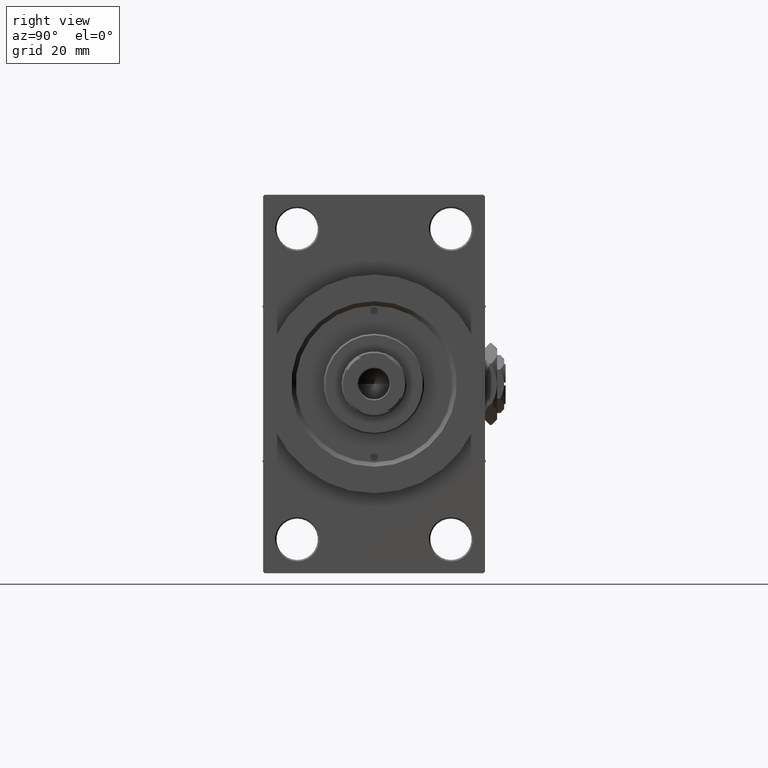
[diagram: clean part render]
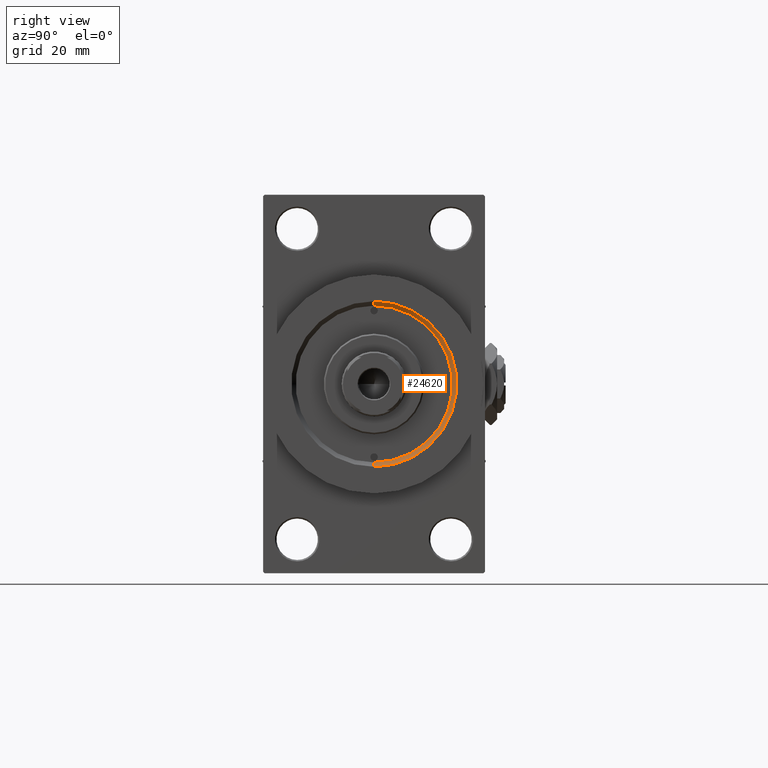
[diagram: same view with one face highlighted and labeled with its STEP entity id]
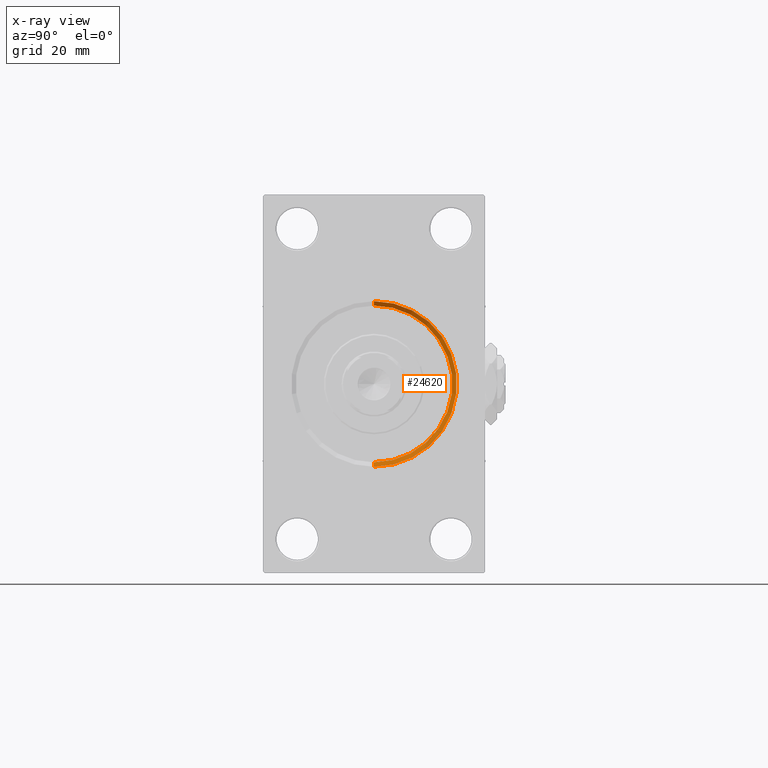
[diagram: x-ray of the same camera — body ghosted, the highlighted face saturated]
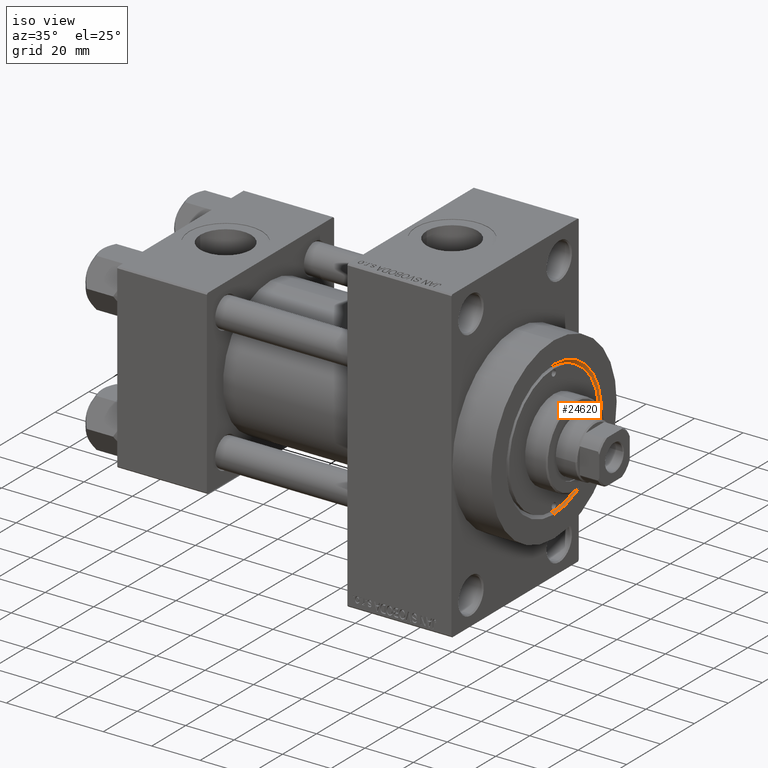
[diagram: same view with one face highlighted and labeled with its STEP entity id]
A machine part, right view. The second image highlights one B-rep face of the part: STEP entity #24620.
The next image is the same camera in x-ray: the body ghosted, the highlighted face saturated — about 0% of this face is hidden behind the body in this view.
A second angle (iso view) of the same face is appended — the face is thin or edge-on in the first view.
In plain terms, the highlighted conical surface has half-angle 45 deg.
Its self-contained STEP definition (entity closure, byte-faithful):
#216 = EDGE_CURVE ( 'NONE', #42300, #36951, #45368, .T. ) ;
#2414 = EDGE_CURVE ( 'NONE', #2831, #36951, #14358, .T. ) ;
#2831 = VERTEX_POINT ( 'NONE', #21891 ) ;
#4945 = DIRECTION ( 'NONE',  ( 0.000000000000000000, 0.000000000000000000, -1.000000000000000000 ) ) ;
#8700 = ORIENTED_EDGE ( 'NONE', *, *, #28031, .F. ) ;
#9048 = DIRECTION ( 'NONE',  ( 0.000000000000000000, 0.000000000000000000, -1.000000000000000000 ) ) ;
#11321 = CARTESIAN_POINT ( 'NONE',  ( 152.5000000000000853, 0.000000000000000000, -26.50000000000000355 ) ) ;
#13024 = CARTESIAN_POINT ( 'NONE',  ( 154.0000000000000284, 0.000000000000000000, 0.000000000000000000 ) ) ;
#13460 = EDGE_CURVE ( 'NONE', #42754, #2831, #37924, .T. ) ;
#14139 = ORIENTED_EDGE ( 'NONE', *, *, #13460, .F. ) ;
#14358 = CIRCLE ( 'NONE', #42904, 27.99999999999994316 ) ;
#15011 = CIRCLE ( 'NONE', #42772, 26.50000000000000355 ) ;
#16551 = CARTESIAN_POINT ( 'NONE',  ( 152.5000000000000853, 0.000000000000000000, 0.000000000000000000 ) ) ;
#21620 = ORIENTED_EDGE ( 'NONE', *, *, #216, .T. ) ;
#21891 = CARTESIAN_POINT ( 'NONE',  ( 154.0000000000000284, 3.429011037612582176E-15, 27.99999999999994316 ) ) ;
#23234 = DIRECTION ( 'NONE',  ( 0.7071067811865491270, 8.659560562354911904E-17, 0.7071067811865459074 ) ) ;
#23726 = DIRECTION ( 'NONE',  ( 0.7071067811865491270, 0.000000000000000000, -0.7071067811865459074 ) ) ;
#24620 = ADVANCED_FACE ( 'NONE', ( #28288 ), #29968, .F. ) ;
#24836 = ORIENTED_EDGE ( 'NONE', *, *, #2414, .F. ) ;
#25176 = AXIS2_PLACEMENT_3D ( 'NONE', #31530, #39723, #4945 ) ;
#27490 = DIRECTION ( 'NONE',  ( 0.000000000000000000, 0.000000000000000000, -1.000000000000000000 ) ) ;
#27796 = EDGE_LOOP ( 'NONE', ( #14139, #8700, #21620, #24836 ) ) ;
#28031 = EDGE_CURVE ( 'NONE', #42300, #42754, #15011, .T. ) ;
#28288 = FACE_OUTER_BOUND ( 'NONE', #27796, .T. ) ;
#29968 = CONICAL_SURFACE ( 'NONE', #25176, 26.50000000000000355, 0.7853981633974459475 ) ;
#30061 = CARTESIAN_POINT ( 'NONE',  ( 152.5000000000000853, 3.245314017740486554E-15, 26.50000000000000355 ) ) ;
#31530 = CARTESIAN_POINT ( 'NONE',  ( 152.5000000000000853, 0.000000000000000000, 0.000000000000000000 ) ) ;
#32748 = CARTESIAN_POINT ( 'NONE',  ( 154.0000000000000284, 0.000000000000000000, -27.99999999999994316 ) ) ;
#34657 = CARTESIAN_POINT ( 'NONE',  ( 152.5000000000000853, 0.000000000000000000, -26.50000000000000355 ) ) ;
#36391 = DIRECTION ( 'NONE',  ( -1.000000000000000000, -0.000000000000000000, -0.000000000000000000 ) ) ;
#36951 = VERTEX_POINT ( 'NONE', #32748 ) ;
#37924 = LINE ( 'NONE', #45865, #48753 ) ;
#39641 = VECTOR ( 'NONE', #23726, 1000.000000000000114 ) ;
#39723 = DIRECTION ( 'NONE',  ( 1.000000000000000000, 0.000000000000000000, 0.000000000000000000 ) ) ;
#42300 = VERTEX_POINT ( 'NONE', #34657 ) ;
#42754 = VERTEX_POINT ( 'NONE', #30061 ) ;
#42772 = AXIS2_PLACEMENT_3D ( 'NONE', #16551, #46378, #27490 ) ;
#42904 = AXIS2_PLACEMENT_3D ( 'NONE', #13024, #36391, #9048 ) ;
#45368 = LINE ( 'NONE', #11321, #39641 ) ;
#45865 = CARTESIAN_POINT ( 'NONE',  ( 152.5000000000000853, 3.245314017740486554E-15, 26.50000000000000355 ) ) ;
#46378 = DIRECTION ( 'NONE',  ( 1.000000000000000000, 0.000000000000000000, 0.000000000000000000 ) ) ;
#48753 = VECTOR ( 'NONE', #23234, 1000.000000000000114 ) ;